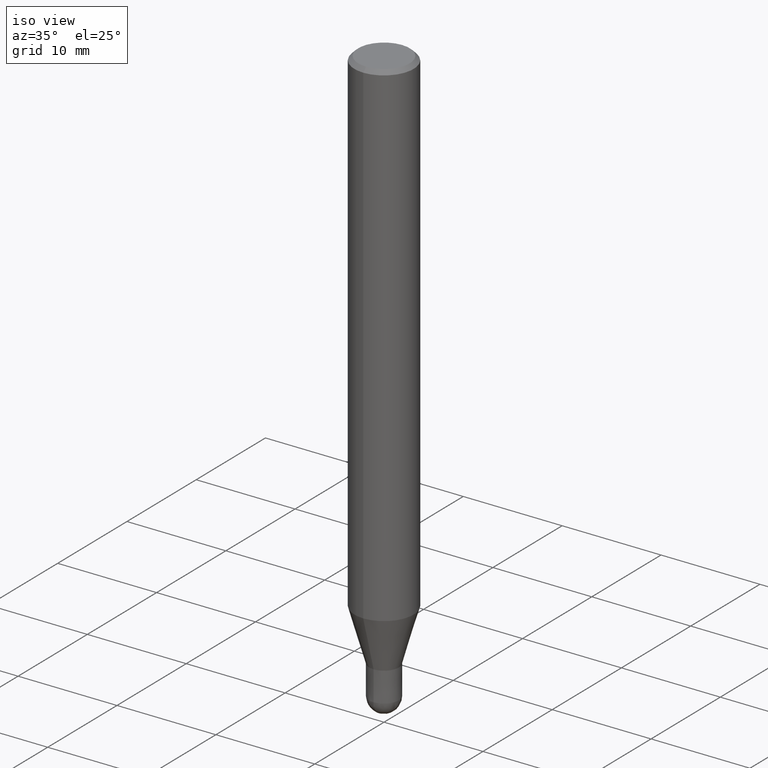
[diagram: clean part render]
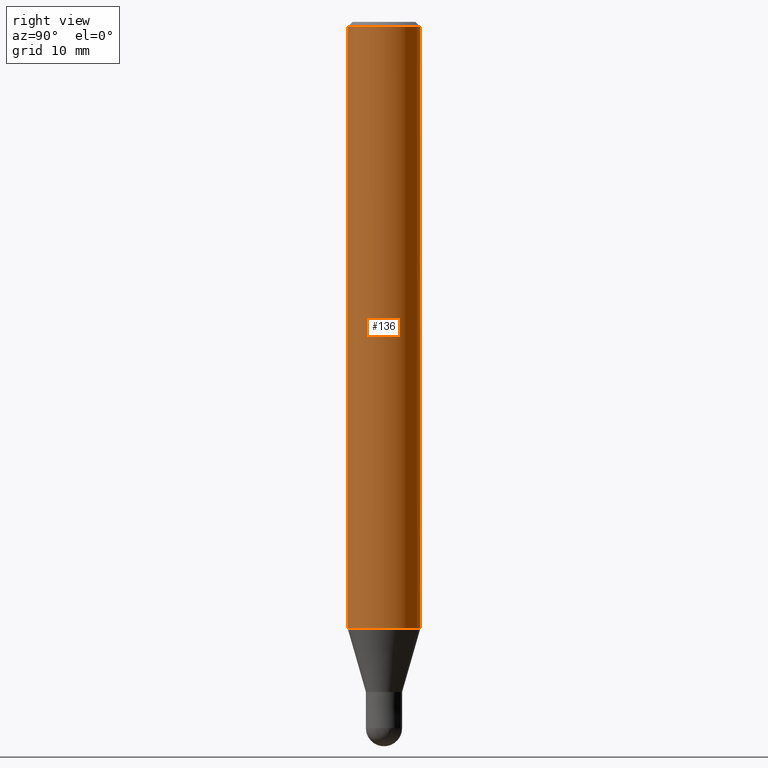
[diagram: tour spotlight — one face highlighted and labeled with its STEP entity id]
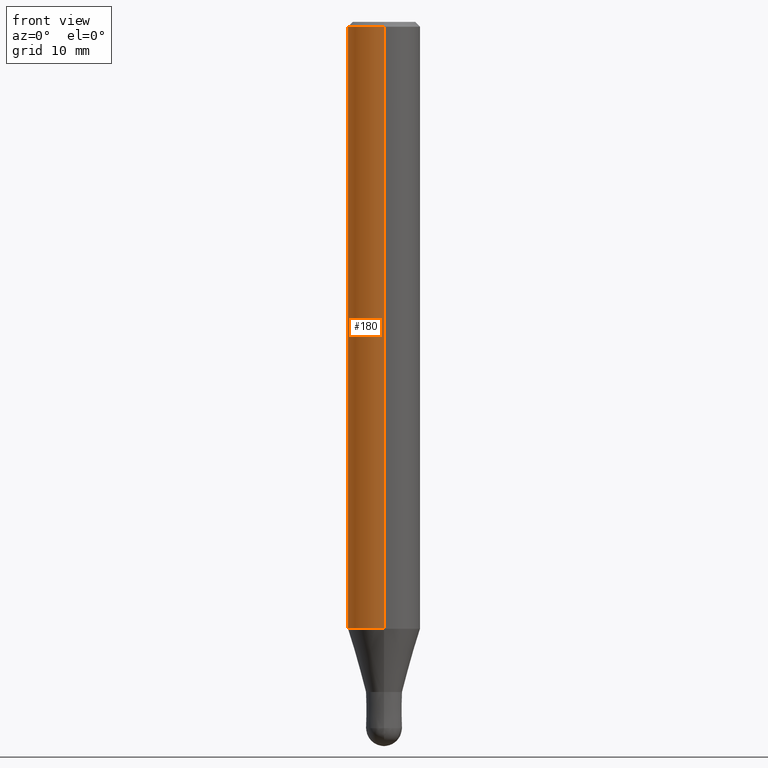
[diagram: tour spotlight — one face highlighted and labeled with its STEP entity id]
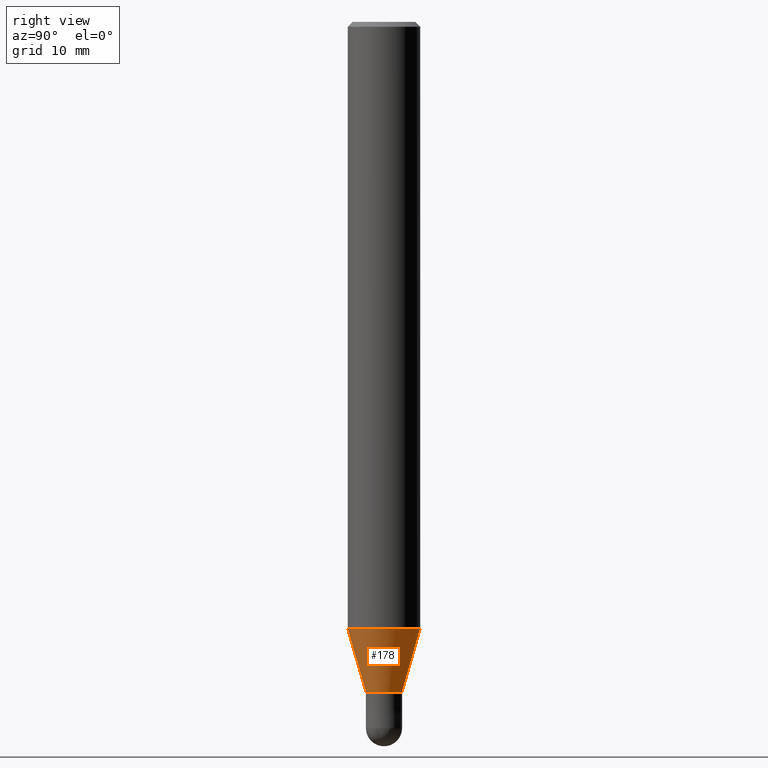
[diagram: tour spotlight — one face highlighted and labeled with its STEP entity id]
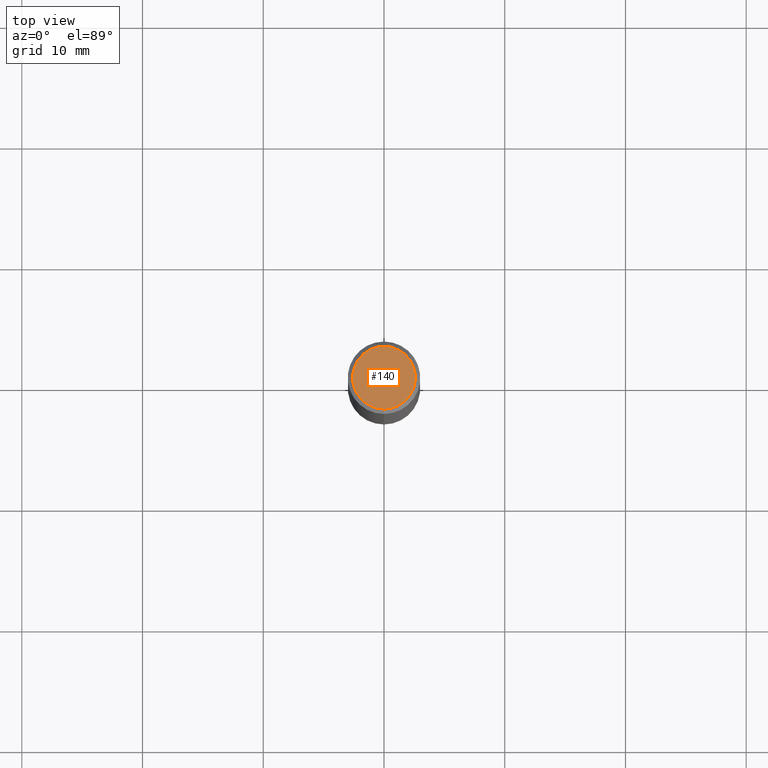
[diagram: tour spotlight — one face highlighted and labeled with its STEP entity id]
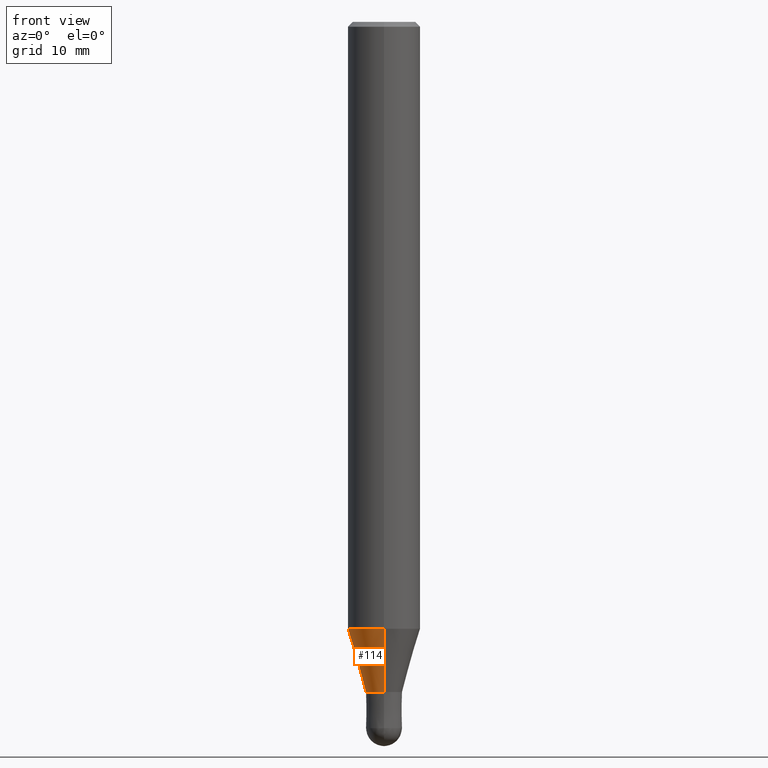
[diagram: tour spotlight — one face highlighted and labeled with its STEP entity id]
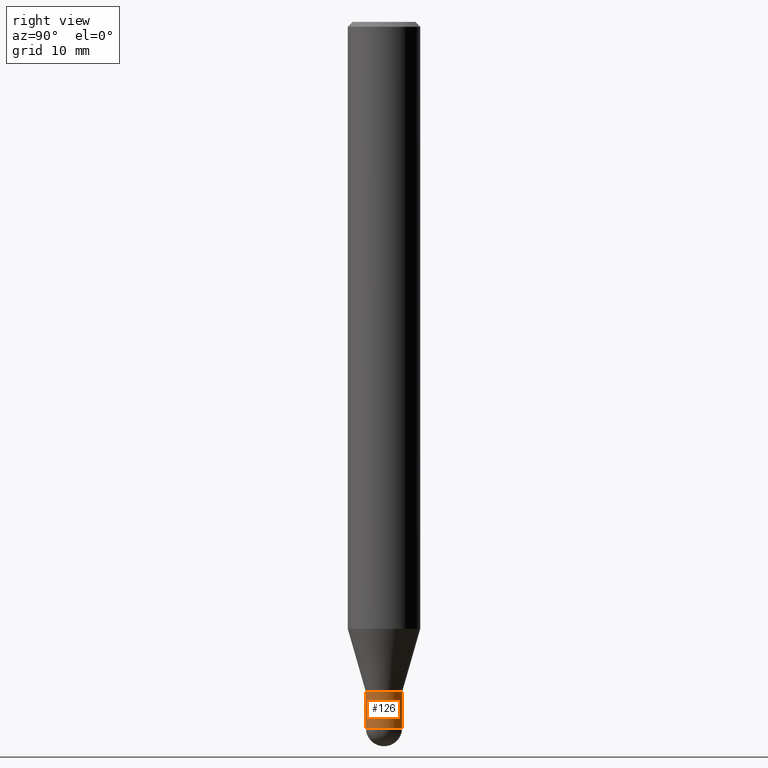
[diagram: tour spotlight — one face highlighted and labeled with its STEP entity id]
A machine part: a face-by-face anatomy tour. The part has 14 B-rep faces; the first image is the clean iso view, then the 6 largest visible faces are spotlighted one at a time (largest first), each with its STEP entity span.

Face 1 — right view, entity #136. In plain terms, the highlighted cylindrical surface (edge-blend (fillet) strip) has radius 3 mm, axis along (-0, -0, 1).
Definition (entity closure, byte-faithful):
#132=EDGE_CURVE('',#138,#170,#262,.T.);
#134=VERTEX_POINT('',#264);
#136=ADVANCED_FACE('',(#266),#267,.T.);
#138=VERTEX_POINT('',#269);
#160=EDGE_CURVE('',#138,#186,#296,.T.);
#162=EDGE_CURVE('',#134,#186,#298,.T.);
#170=VERTEX_POINT('',#308);
#186=VERTEX_POINT('',#326);
#188=EDGE_CURVE('',#170,#134,#328,.T.);
#262=LINE('',#413,#414);
#264=CARTESIAN_POINT('',(3.67381906146713E-016,-3.0,-50.269));
#266=FACE_OUTER_BOUND('',#418,.T.);
#267=CYLINDRICAL_SURFACE('',#419,3.0);
#269=CARTESIAN_POINT('',(0.0,3.0,-0.399999999999999));
#296=CIRCLE('',#449,3.0);
#298=LINE('',#452,#453);
#308=CARTESIAN_POINT('',(0.0,3.0,-50.269));
#326=CARTESIAN_POINT('',(3.67381906146713E-016,-3.0,-0.399999999999999));
#328=CIRCLE('',#487,3.0);
#413=CARTESIAN_POINT('',(-3.67381906146713E-016,3.0,-25.3345));
#414=VECTOR('',#562,1.0);
#418=EDGE_LOOP('',(#564,#565,#566,#567));
#419=AXIS2_PLACEMENT_3D('',#568,#569,#570);
#449=AXIS2_PLACEMENT_3D('',#603,#604,#605);
#452=CARTESIAN_POINT('',(3.67381906146713E-016,-3.0,-25.3345));
#453=VECTOR('',#606,1.0);
#487=AXIS2_PLACEMENT_3D('',#646,#647,#648);
#562=DIRECTION('',(0.0,0.0,-1.0));
#564=ORIENTED_EDGE('',*,*,#132,.F.);
#565=ORIENTED_EDGE('',*,*,#160,.T.);
#566=ORIENTED_EDGE('',*,*,#162,.F.);
#567=ORIENTED_EDGE('',*,*,#188,.F.);
#568=CARTESIAN_POINT('',(0.0,0.0,-25.3345));
#569=DIRECTION('',(-0.0,-0.0,1.0));
#570=DIRECTION('',(0.0,1.0,0.0));
#603=CARTESIAN_POINT('',(0.0,0.0,-0.399999999999999));
#604=DIRECTION('',(0.0,0.0,-1.0));
#605=DIRECTION('',(0.0,1.0,0.0));
#606=DIRECTION('',(-0.0,-0.0,1.0));
#646=CARTESIAN_POINT('',(0.0,0.0,-50.269));
#647=DIRECTION('',(0.0,0.0,-1.0));
#648=DIRECTION('',(0.0,1.0,0.0));

Face 2 — front view, entity #180. In plain terms, the highlighted cylindrical surface (edge-blend (fillet) strip) has radius 3 mm, axis along (-0, -0, 1).
Definition (entity closure, byte-faithful):
#132=EDGE_CURVE('',#138,#170,#262,.T.);
#134=VERTEX_POINT('',#264);
#138=VERTEX_POINT('',#269);
#148=EDGE_CURVE('',#186,#138,#281,.T.);
#162=EDGE_CURVE('',#134,#186,#298,.T.);
#170=VERTEX_POINT('',#308);
#180=ADVANCED_FACE('',(#319),#320,.T.);
#182=EDGE_CURVE('',#134,#170,#322,.T.);
#186=VERTEX_POINT('',#326);
#262=LINE('',#413,#414);
#264=CARTESIAN_POINT('',(3.67381906146713E-016,-3.0,-50.269));
#269=CARTESIAN_POINT('',(0.0,3.0,-0.399999999999999));
#281=CIRCLE('',#434,3.0);
#298=LINE('',#452,#453);
#308=CARTESIAN_POINT('',(0.0,3.0,-50.269));
#319=FACE_OUTER_BOUND('',#476,.T.);
#320=CYLINDRICAL_SURFACE('',#477,3.0);
#322=CIRCLE('',#480,3.0);
#326=CARTESIAN_POINT('',(3.67381906146713E-016,-3.0,-0.399999999999999));
#413=CARTESIAN_POINT('',(-3.67381906146713E-016,3.0,-25.3345));
#414=VECTOR('',#562,1.0);
#434=AXIS2_PLACEMENT_3D('',#583,#584,#585);
#452=CARTESIAN_POINT('',(3.67381906146713E-016,-3.0,-25.3345));
#453=VECTOR('',#606,1.0);
#476=EDGE_LOOP('',(#636,#637,#638,#639));
#477=AXIS2_PLACEMENT_3D('',#640,#641,#642);
#480=AXIS2_PLACEMENT_3D('',#643,#644,#645);
#562=DIRECTION('',(0.0,0.0,-1.0));
#583=CARTESIAN_POINT('',(0.0,0.0,-0.399999999999999));
#584=DIRECTION('',(0.0,0.0,-1.0));
#585=DIRECTION('',(0.0,1.0,0.0));
#606=DIRECTION('',(-0.0,-0.0,1.0));
#636=ORIENTED_EDGE('',*,*,#132,.T.);
#637=ORIENTED_EDGE('',*,*,#182,.F.);
#638=ORIENTED_EDGE('',*,*,#162,.T.);
#639=ORIENTED_EDGE('',*,*,#148,.T.);
#640=CARTESIAN_POINT('',(0.0,0.0,-25.3345));
#641=DIRECTION('',(-0.0,-0.0,1.0));
#642=DIRECTION('',(0.0,1.0,0.0));
#643=CARTESIAN_POINT('',(0.0,0.0,-50.269));
#644=DIRECTION('',(0.0,0.0,-1.0));
#645=DIRECTION('',(0.0,1.0,0.0));

Face 3 — right view, entity #178. In plain terms, the highlighted conical surface has half-angle 16 deg.
Definition (entity closure, byte-faithful):
#104=VERTEX_POINT('',#230);
#110=EDGE_CURVE('',#176,#146,#236,.T.);
#116=EDGE_CURVE('',#146,#174,#244,.T.);
#146=VERTEX_POINT('',#279);
#166=EDGE_CURVE('',#176,#104,#303,.T.);
#174=VERTEX_POINT('',#312);
#176=VERTEX_POINT('',#314);
#178=ADVANCED_FACE('',(#316),#317,.T.);
#190=EDGE_CURVE('',#174,#104,#330,.T.);
#230=CARTESIAN_POINT('',(3.67375783114944E-016,-2.99995,-50.269));
#236=LINE('',#383,#384);
#244=CIRCLE('',#393,1.49995);
#279=CARTESIAN_POINT('',(0.0,1.49995,-55.5));
#303=CIRCLE('',#459,2.99995);
#312=CARTESIAN_POINT('',(1.83684830041587E-016,-1.49995,-55.5));
#314=CARTESIAN_POINT('',(0.0,2.99995,-50.269));
#316=FACE_OUTER_BOUND('',#473,.T.);
#317=CONICAL_SURFACE('',#474,2.24995,0.279258842899557);
#330=LINE('',#490,#491);
#383=CARTESIAN_POINT('',(-2.75530306578266E-016,2.24995,-52.8845));
#384=VECTOR('',#521,1.0);
#393=AXIS2_PLACEMENT_3D('',#536,#537,#538);
#459=AXIS2_PLACEMENT_3D('',#613,#614,#615);
#473=EDGE_LOOP('',(#628,#629,#630,#631));
#474=AXIS2_PLACEMENT_3D('',#632,#633,#634);
#490=CARTESIAN_POINT('',(2.75530306578266E-016,-2.24995,-52.8845));
#491=VECTOR('',#649,1.0);
#521=DIRECTION('',(3.37554511665357E-017,-0.275643279664314,-0.961259997282682));
#536=CARTESIAN_POINT('',(0.0,0.0,-55.5));
#537=DIRECTION('',(0.0,0.0,-1.0));
#538=DIRECTION('',(0.0,1.0,0.0));
#613=CARTESIAN_POINT('',(0.0,0.0,-50.269));
#614=DIRECTION('',(0.0,0.0,-1.0));
#615=DIRECTION('',(0.0,1.0,0.0));
#628=ORIENTED_EDGE('',*,*,#110,.F.);
#629=ORIENTED_EDGE('',*,*,#166,.T.);
#630=ORIENTED_EDGE('',*,*,#190,.F.);
#631=ORIENTED_EDGE('',*,*,#116,.F.);
#632=CARTESIAN_POINT('',(0.0,0.0,-52.8845));
#633=DIRECTION('',(-0.0,-0.0,1.0));
#634=DIRECTION('',(0.0,1.0,0.0));
#649=DIRECTION('',(3.37554511665357E-017,-0.275643279664314,0.961259997282682));

Face 4 — top view, entity #140. In plain terms, the highlighted planar face has unit normal (-0, 0, 1).
Definition (entity closure, byte-faithful):
#106=EDGE_CURVE('',#156,#142,#232,.T.);
#124=EDGE_CURVE('',#142,#156,#253,.T.);
#140=ADVANCED_FACE('',(#271),#272,.T.);
#142=VERTEX_POINT('',#274);
#156=VERTEX_POINT('',#292);
#232=CIRCLE('',#376,2.6);
#253=CIRCLE('',#404,2.6);
#271=FACE_OUTER_BOUND('',#423,.T.);
#272=PLANE('',#424);
#274=CARTESIAN_POINT('',(0.0,2.6,0.0));
#292=CARTESIAN_POINT('',(3.18397651993818E-016,-2.6,0.0));
#376=AXIS2_PLACEMENT_3D('',#517,#518,#519);
#404=AXIS2_PLACEMENT_3D('',#550,#551,#552);
#423=EDGE_LOOP('',(#572,#573));
#424=AXIS2_PLACEMENT_3D('',#574,#575,#576);
#517=CARTESIAN_POINT('',(0.0,0.0,0.0));
#518=DIRECTION('',(0.0,0.0,-1.0));
#519=DIRECTION('',(0.0,1.0,0.0));
#550=CARTESIAN_POINT('',(0.0,0.0,0.0));
#551=DIRECTION('',(0.0,0.0,-1.0));
#552=DIRECTION('',(0.0,1.0,0.0));
#572=ORIENTED_EDGE('',*,*,#124,.F.);
#573=ORIENTED_EDGE('',*,*,#106,.F.);
#574=CARTESIAN_POINT('',(0.0,1.3,0.0));
#575=DIRECTION('',(-0.0,0.0,1.0));
#576=DIRECTION('',(0.0,-1.0,0.0));

Face 5 — front view, entity #114. In plain terms, the highlighted conical surface has half-angle 16 deg.
Definition (entity closure, byte-faithful):
#86=EDGE_CURVE('',#104,#176,#211,.T.);
#100=EDGE_CURVE('',#174,#146,#225,.T.);
#104=VERTEX_POINT('',#230);
#110=EDGE_CURVE('',#176,#146,#236,.T.);
#114=ADVANCED_FACE('',(#241),#242,.T.);
#146=VERTEX_POINT('',#279);
#174=VERTEX_POINT('',#312);
#176=VERTEX_POINT('',#314);
#190=EDGE_CURVE('',#174,#104,#330,.T.);
#211=CIRCLE('',#344,2.99995);
#225=CIRCLE('',#368,1.49995);
#230=CARTESIAN_POINT('',(3.67375783114944E-016,-2.99995,-50.269));
#236=LINE('',#383,#384);
#241=FACE_OUTER_BOUND('',#389,.T.);
#242=CONICAL_SURFACE('',#390,2.24995,0.279258842899557);
#279=CARTESIAN_POINT('',(0.0,1.49995,-55.5));
#312=CARTESIAN_POINT('',(1.83684830041587E-016,-1.49995,-55.5));
#314=CARTESIAN_POINT('',(0.0,2.99995,-50.269));
#330=LINE('',#490,#491);
#344=AXIS2_PLACEMENT_3D('',#493,#494,#495);
#368=AXIS2_PLACEMENT_3D('',#508,#509,#510);
#383=CARTESIAN_POINT('',(-2.75530306578266E-016,2.24995,-52.8845));
#384=VECTOR('',#521,1.0);
#389=EDGE_LOOP('',(#529,#530,#531,#532));
#390=AXIS2_PLACEMENT_3D('',#533,#534,#535);
#490=CARTESIAN_POINT('',(2.75530306578266E-016,-2.24995,-52.8845));
#491=VECTOR('',#649,1.0);
#493=CARTESIAN_POINT('',(0.0,0.0,-50.269));
#494=DIRECTION('',(0.0,0.0,-1.0));
#495=DIRECTION('',(0.0,1.0,0.0));
#508=CARTESIAN_POINT('',(0.0,0.0,-55.5));
#509=DIRECTION('',(0.0,0.0,-1.0));
#510=DIRECTION('',(0.0,1.0,0.0));
#521=DIRECTION('',(3.37554511665357E-017,-0.275643279664314,-0.961259997282682));
#529=ORIENTED_EDGE('',*,*,#110,.T.);
#530=ORIENTED_EDGE('',*,*,#100,.F.);
#531=ORIENTED_EDGE('',*,*,#190,.T.);
#532=ORIENTED_EDGE('',*,*,#86,.T.);
#533=CARTESIAN_POINT('',(0.0,0.0,-52.8845));
#534=DIRECTION('',(-0.0,-0.0,1.0));
#535=DIRECTION('',(0.0,1.0,0.0));
#649=DIRECTION('',(3.37554511665357E-017,-0.275643279664314,0.961259997282682));

Face 6 — right view, entity #126. In plain terms, the highlighted conical surface has half-angle 0.002 deg.
Definition (entity closure, byte-faithful):
#88=EDGE_CURVE('',#158,#184,#213,.T.);
#90=EDGE_CURVE('',#118,#128,#215,.T.);
#94=EDGE_CURVE('',#184,#118,#219,.T.);
#96=EDGE_CURVE('',#158,#128,#221,.T.);
#118=VERTEX_POINT('',#246);
#126=ADVANCED_FACE('',(#255),#256,.T.);
#128=VERTEX_POINT('',#258);
#158=VERTEX_POINT('',#294);
#184=VERTEX_POINT('',#324);
#213=LINE('',#347,#348);
#215=LINE('',#351,#352);
#219=CIRCLE('',#359,1.5);
#221=CIRCLE('',#362,1.4999);
#246=CARTESIAN_POINT('',(1.83690953073357E-016,-1.5,-58.5));
#255=FACE_OUTER_BOUND('',#406,.T.);
#256=CONICAL_SURFACE('',#407,1.49995,3.3333333321058E-005);
#258=CARTESIAN_POINT('',(1.83678707009818E-016,-1.4999,-55.5));
#294=CARTESIAN_POINT('',(0.0,1.4999,-55.5));
#324=CARTESIAN_POINT('',(0.0,1.5,-58.5));
#347=CARTESIAN_POINT('',(-1.83684830041587E-016,1.49995,-57.0));
#348=VECTOR('',#496,1.0);
#351=CARTESIAN_POINT('',(1.83684830041587E-016,-1.49995,-57.0));
#352=VECTOR('',#497,1.0);
#359=AXIS2_PLACEMENT_3D('',#499,#500,#501);
#362=AXIS2_PLACEMENT_3D('',#502,#503,#504);
#406=EDGE_LOOP('',(#554,#555,#556,#557));
#407=AXIS2_PLACEMENT_3D('',#558,#559,#560);
#496=DIRECTION('',(-4.08202117714875E-021,3.33333333148852E-005,-0.999999999444445));
#497=DIRECTION('',(-4.08202117714875E-021,3.33333333148852E-005,0.999999999444445));
#499=CARTESIAN_POINT('',(0.0,0.0,-58.5));
#500=DIRECTION('',(0.0,0.0,-1.0));
#501=DIRECTION('',(0.0,1.0,0.0));
#502=CARTESIAN_POINT('',(0.0,0.0,-55.5));
#503=DIRECTION('',(0.0,0.0,-1.0));
#504=DIRECTION('',(0.0,1.0,0.0));
#554=ORIENTED_EDGE('',*,*,#88,.F.);
#555=ORIENTED_EDGE('',*,*,#96,.T.);
#556=ORIENTED_EDGE('',*,*,#90,.F.);
#557=ORIENTED_EDGE('',*,*,#94,.F.);
#558=CARTESIAN_POINT('',(0.0,0.0,-57.0));
#559=DIRECTION('',(0.0,-0.0,-1.0));
#560=DIRECTION('',(0.0,1.0,0.0));